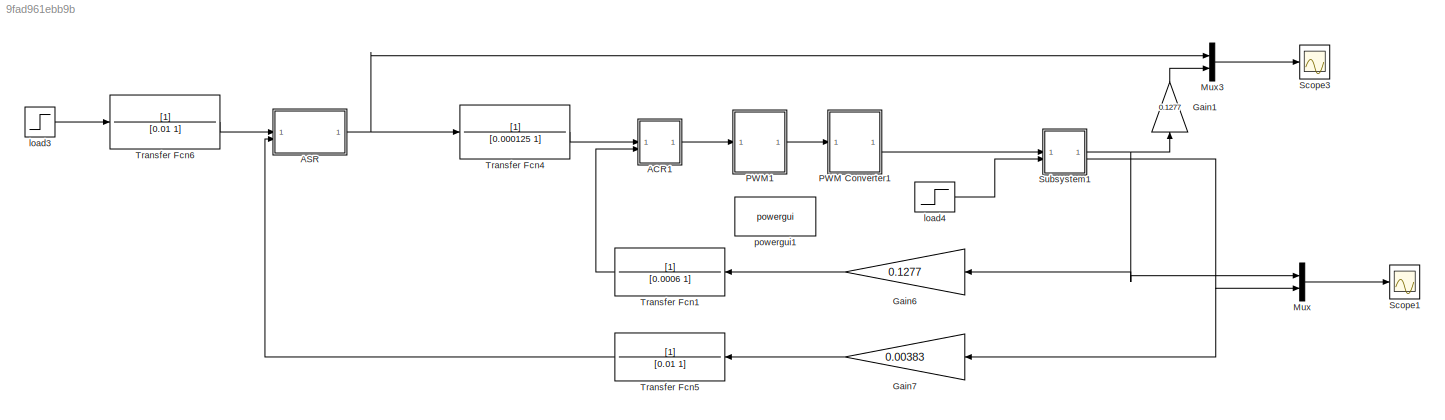
MODEL slx_9fad961ebb9b
KIND model
CONFIG AbsTol = auto
CONFIG EnableMultiTasking = off
CONFIG FixedStep = auto
CONFIG MaxStep = 1e-5
CONFIG MinStep = auto
CONFIG RelTol = 1e-3
CONFIG SampleTimeConstraint = Unconstrained
CONFIG SolverName = ode45
CONFIG StartTime = 0.0
CONFIG StopTime = 12
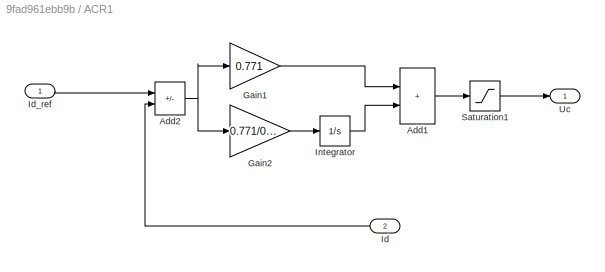
BLOCK [SubSystem] ACR1
BLOCK [Sum] ACR1/Add1
  IconShape = rectangular
BLOCK [Sum] ACR1/Add2
  IconShape = rectangular
  Inputs = +-
BLOCK [Gain] ACR1/Gain1
  Gain = 0.771
BLOCK [Gain] ACR1/Gain2
  Gain = 0.771/0.0144
BLOCK [Inport] ACR1/Id
  Port = 2
BLOCK [Inport] ACR1/Id_ref
BLOCK [Integrator] ACR1/Integrator
  LimitOutput = on
  LowerSaturationLimit = -5
  UpperSaturationLimit = 5
BLOCK [Saturate] ACR1/Saturation1
  LowerLimit = -5
  UpperLimit = 5
BLOCK [Outport] ACR1/Uc
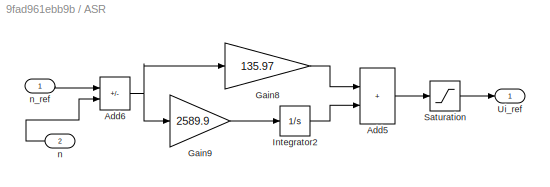
BLOCK [SubSystem] ASR
BLOCK [Sum] ASR/Add5
  IconShape = rectangular
BLOCK [Sum] ASR/Add6
  IconShape = rectangular
  Inputs = +-
BLOCK [Gain] ASR/Gain8
  Gain = 135.97
BLOCK [Gain] ASR/Gain9
  Gain = 2589.9
BLOCK [Integrator] ASR/Integrator2
  LimitOutput = on
  LowerSaturationLimit = -5
  UpperSaturationLimit = 5
BLOCK [Saturate] ASR/Saturation
  LowerLimit = -5
  UpperLimit = 5
BLOCK [Outport] ASR/Ui_ref
BLOCK [Inport] ASR/n
  Port = 2
BLOCK [Inport] ASR/n_ref
BLOCK [Gain] Gain1
  Gain = 0.1277
  NameLocation = left
BLOCK [Gain] Gain6
  Gain = 0.1277
BLOCK [Gain] Gain7
  Gain = 0.00383
BLOCK [Mux] Mux
  DisplayOption = bar
  Inputs = 2
BLOCK [Mux] Mux3
  DisplayOption = bar
  Inputs = 2
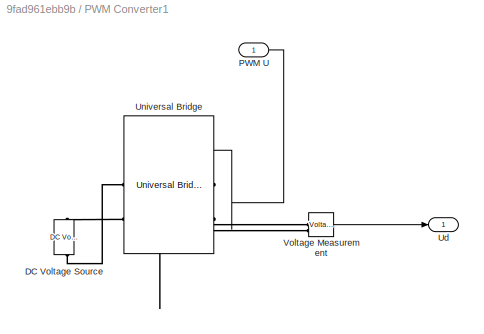
BLOCK [SubSystem] PWM Converter1
BLOCK [Reference] PWM Converter1/DC Voltage Source  REF=spsDCVoltageSourceLib/DC Voltage Source
  LibrarySourceBlock = sps_lib/Sources/DC Voltage Source
  NameLocation = top
  SourceBlock = spsDCVoltageSourceLib/DC Voltage Source
  SourceType = DC Voltage Source
BLOCK [Inport] PWM Converter1/PWM U
BLOCK [Outport] PWM Converter1/Ud
BLOCK [Reference] PWM Converter1/Universal Bridge  REF=spsUniversalBridgeLib/Universal Bridge
  LibrarySourceBlock = sps_lib/Power Electronics/Universal Bridge
  NameLocation = top
  SourceBlock = spsUniversalBridgeLib/Universal Bridge
  SourceType = Universal Bridge
BLOCK [Reference] PWM Converter1/Voltage Measurement  REF=spsVoltageMeasurementLib/Voltage Measurement
  LibrarySourceBlock = sps_lib/Sensors and Measurements/Voltage Measurement
  SourceBlock = spsVoltageMeasurementLib/Voltage Measurement
  SourceType = Voltage Measurement
  UserDataPersistent = on
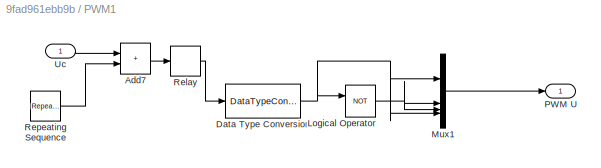
BLOCK [SubSystem] PWM1
BLOCK [Sum] PWM1/Add7
  IconShape = rectangular
BLOCK [DataTypeConversion] PWM1/Data Type Conversion
  OutDataTypeStr = boolean
  RndMeth = Floor
  SaturateOnIntegerOverflow = off
BLOCK [Logic] PWM1/Logical Operator
  AllPortsSameDT = off
  Operator = NOT
  OutDataTypeStr = boolean
BLOCK [Mux] PWM1/Mux1
  DisplayOption = signals
BLOCK [Outport] PWM1/PWM U
BLOCK [Relay] PWM1/Relay
  OffSwitchValue = 0
  OnSwitchValue = 0
BLOCK [Reference] PWM1/Repeating Sequence  REF=simulink/Sources/Repeating
Sequence
  SourceBlock = simulink/Sources/Repeating\nSequence
  SourceType = Repeating table
BLOCK [Inport] PWM1/Uc
BLOCK [Scope] Scope1
  Floating = off
  NumInputPorts = 1
  ScopeSpecificationString = Simulink.scopes.TimeScopeBlockCfg('CurrentConfiguration', extmgr.ConfigurationSet(extmgr.Configuration('Core','General UI',true,'FigureColor',[1 1 1]),extmgr.Configuration('Core','Source UI',true),extmgr.Configuration('Sources','WiredSimulink',true,'DataLoggingVariableName','ScopeData1'),extmgr.Configuration('Visuals','Time Domain',true,'SerializedDisplays',{struct('MinYLimReal','-348.14828','MaxY...<+1666ch>
BLOCK [Scope] Scope3
  Floating = off
  NumInputPorts = 1
  ScopeSpecificationString = Simulink.scopes.TimeScopeBlockCfg('CurrentConfiguration', extmgr.ConfigurationSet(extmgr.Configuration('Core','General UI',true,'FigureColor',[1 1 1]),extmgr.Configuration('Core','Source UI',true),extmgr.Configuration('Sources','WiredSimulink',true,'DataLoggingVariableName','ScopeData2'),extmgr.Configuration('Visuals','Time Domain',true,'SerializedDisplays',{struct('MinYLimReal','-1.65933','MaxYLi...<+1645ch>
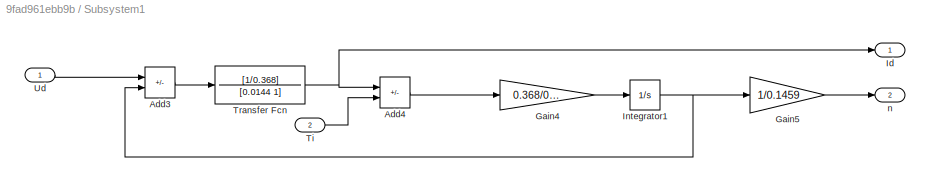
BLOCK [SubSystem] Subsystem1
BLOCK [Sum] Subsystem1/Add3
  IconShape = rectangular
  Inputs = +-
BLOCK [Sum] Subsystem1/Add4
  IconShape = rectangular
  Inputs = +-
BLOCK [Gain] Subsystem1/Gain4
  Gain = 0.368/0.18
BLOCK [Gain] Subsystem1/Gain5
  Gain = 1/0.1459
BLOCK [Outport] Subsystem1/Id
BLOCK [Integrator] Subsystem1/Integrator1
BLOCK [Inport] Subsystem1/Ti
  Port = 2
BLOCK [TransferFcn] Subsystem1/Transfer Fcn
  Denominator = [0.0144 1]
  Numerator = [1/0.368]
BLOCK [Inport] Subsystem1/Ud
BLOCK [Outport] Subsystem1/n
  Port = 2
BLOCK [TransferFcn] Transfer Fcn1
  Denominator = [0.0006 1]
BLOCK [TransferFcn] Transfer Fcn4
  Denominator = [0.000125 1]
  NameLocation = left
BLOCK [TransferFcn] Transfer Fcn5
  Denominator = [0.01 1]
BLOCK [TransferFcn] Transfer Fcn6
  Denominator = [0.01 1]
BLOCK [Step] load3
  After = 10
  SampleTime = 0
  Time = 0
BLOCK [Step] load4
  After = 0
  SampleTime = 0
  Time = 0
BLOCK [Reference] powergui1  REF=spspowerguiLib/powergui
  LibrarySourceBlock = sps_lib/powergui
  Priority = 1
  SourceBlock = spspowerguiLib/powergui
  SourceType = PSB option menu block
LINE ACR1/Add1:1 -> ACR1/Saturation1:1
NET ACR1/Add2:1 -> ACR1/Gain1:1, ACR1/Gain2:1
LINE ACR1/Gain1:1 -> ACR1/Add1:1
LINE ACR1/Gain2:1 -> ACR1/Integrator:1
LINE ACR1/Id:1 -> ACR1/Add2:2
LINE ACR1/Id_ref:1 -> ACR1/Add2:1
LINE ACR1/Integrator:1 -> ACR1/Add1:2
LINE ACR1/Saturation1:1 -> ACR1/Uc:1
LINE ACR1:1 -> PWM1:1
LINE ASR/Add5:1 -> ASR/Saturation:1
NET ASR/Add6:1 -> ASR/Gain8:1, ASR/Gain9:1
LINE ASR/Gain8:1 -> ASR/Add5:1
LINE ASR/Gain9:1 -> ASR/Integrator2:1
LINE ASR/Integrator2:1 -> ASR/Add5:2
LINE ASR/Saturation:1 -> ASR/Ui_ref:1
LINE ASR/n:1 -> ASR/Add6:2
LINE ASR/n_ref:1 -> ASR/Add6:1
NET ASR:1 -> Mux3:1, Transfer Fcn4:1
LINE Gain1:1 -> Mux3:2
LINE Gain6:1 -> Transfer Fcn1:1
LINE Gain7:1 -> Transfer Fcn5:1
LINE Mux3:1 -> Scope3:1
LINE Mux:1 -> Scope1:1
LINE PWM Converter1/PWM U:1 -> PWM Converter1/Universal Bridge:1
LINE PWM Converter1/Voltage Measurement:1 -> PWM Converter1/Ud:1
LINE PWM Converter1:1 -> Subsystem1:1
LINE PWM1/Add7:1 -> PWM1/Relay:1
NET PWM1/Data Type Conversion:1 -> PWM1/Logical Operator:1, PWM1/Mux1:1, PWM1/Mux1:4
NET PWM1/Logical Operator:1 -> PWM1/Mux1:2, PWM1/Mux1:3
LINE PWM1/Mux1:1 -> PWM1/PWM U:1
LINE PWM1/Relay:1 -> PWM1/Data Type Conversion:1
LINE PWM1/Repeating Sequence:1 -> PWM1/Add7:2
LINE PWM1/Uc:1 -> PWM1/Add7:1
LINE PWM1:1 -> PWM Converter1:1
LINE Subsystem1/Add3:1 -> Subsystem1/Transfer Fcn:1
LINE Subsystem1/Add4:1 -> Subsystem1/Gain4:1
LINE Subsystem1/Gain4:1 -> Subsystem1/Integrator1:1
LINE Subsystem1/Gain5:1 -> Subsystem1/n:1
NET Subsystem1/Integrator1:1 -> Subsystem1/Add3:2, Subsystem1/Gain5:1
LINE Subsystem1/Ti:1 -> Subsystem1/Add4:2
NET Subsystem1/Transfer Fcn:1 -> Subsystem1/Add4:1, Subsystem1/Id:1
LINE Subsystem1/Ud:1 -> Subsystem1/Add3:1
NET Subsystem1:1 -> Gain1:1, Gain6:1, Mux:1
NET Subsystem1:2 -> Gain7:1, Mux:2
LINE Transfer Fcn1:1 -> ACR1:2
LINE Transfer Fcn4:1 -> ACR1:1
LINE Transfer Fcn5:1 -> ASR:2
LINE Transfer Fcn6:1 -> ASR:1
LINE load3:1 -> Transfer Fcn6:1
LINE load4:1 -> Subsystem1:2
PLINE PWM Converter1/DC Voltage Source:LConn1 -- PWM Converter1/Universal Bridge:RConn2
PLINE PWM Converter1/DC Voltage Source:RConn1 -- PWM Converter1/Universal Bridge:RConn1
PLINE PWM Converter1/Universal Bridge:LConn1 -- PWM Converter1/Voltage Measurement:LConn1
PLINE PWM Converter1/Universal Bridge:LConn2 -- PWM Converter1/Voltage Measurement:LConn2
note: NET lines group one-source signal fan-out (src -> all destinations, sorted); 1:1 wires keep LINE
